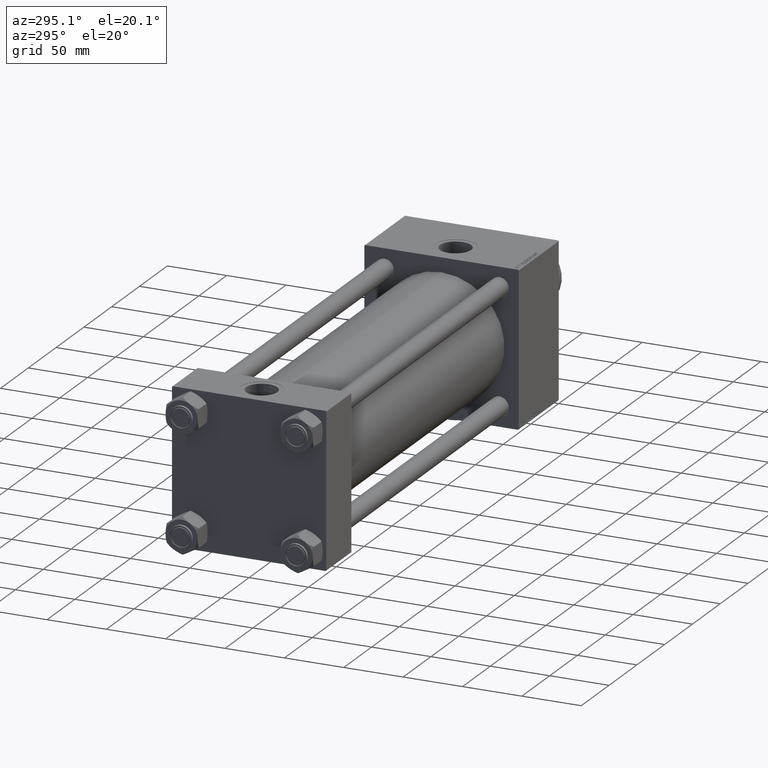
[diagram: clean part render]
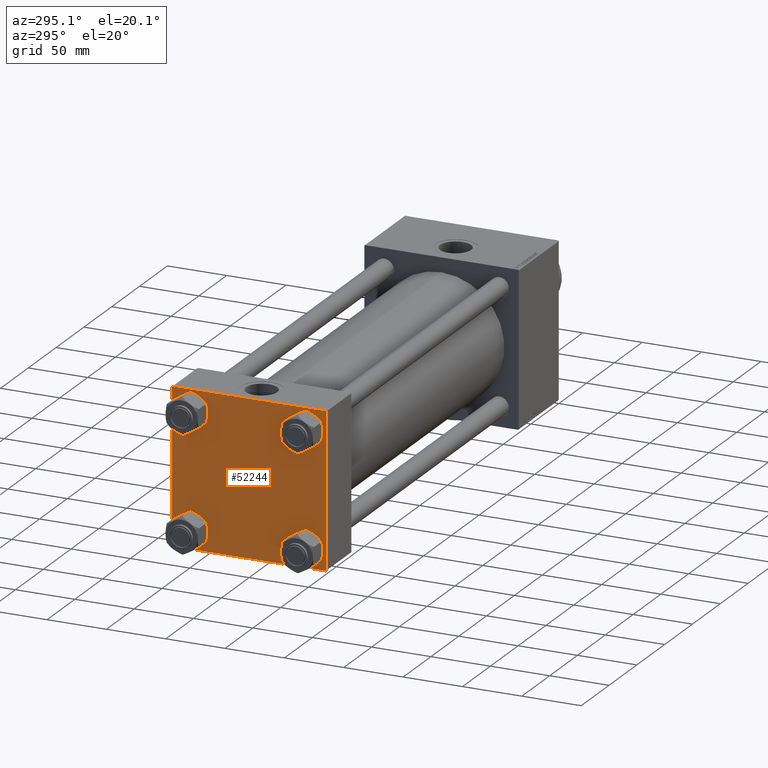
[diagram: same view with one face highlighted and labeled with its STEP entity id]
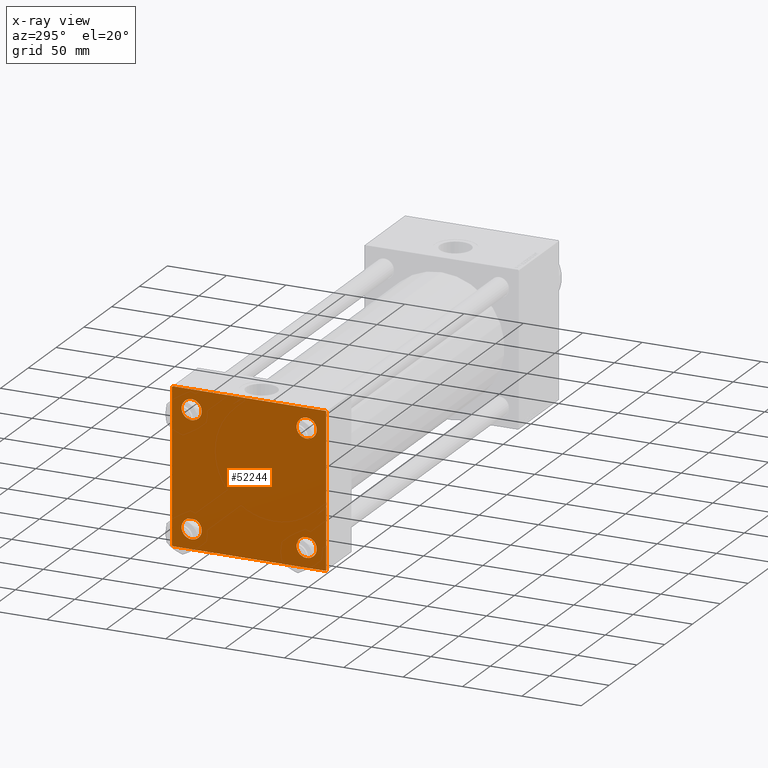
[diagram: x-ray of the same camera — body ghosted, the highlighted face saturated]
A machine part, auxiliary view. The second image highlights one B-rep face of the part: STEP entity #52244.
The next image is the same camera in x-ray: the body ghosted, the highlighted face saturated — about 0% of this face is hidden behind the body in this view.
In plain terms, the highlighted planar face has unit normal (-1, 0, 0).
Its self-contained STEP definition (entity closure, byte-faithful):
#213 = EDGE_CURVE ( 'NONE', #48922, #4113, #39203, .T. ) ;
#540 = EDGE_LOOP ( 'NONE', ( #18098, #29694, #11628, #30254, #8396, #47907, #1675, #20299 ) ) ;
#1278 = ORIENTED_EDGE ( 'NONE', *, *, #27507, .T. ) ;
#1675 = ORIENTED_EDGE ( 'NONE', *, *, #14427, .F. ) ;
#1781 = CIRCLE ( 'NONE', #9464, 8.500000000000007105 ) ;
#1783 = EDGE_CURVE ( 'NONE', #18276, #33972, #10932, .T. ) ;
#2107 = EDGE_CURVE ( 'NONE', #33059, #12242, #36708, .T. ) ;
#2655 = CARTESIAN_POINT ( 'NONE',  ( 0.000000000000000000, -48.44999999999999574, 56.95000000000003837 ) ) ;
#3102 = DIRECTION ( 'NONE',  ( 1.000000000000000000, -0.000000000000000000, 0.000000000000000000 ) ) ;
#3920 = DIRECTION ( 'NONE',  ( -0.000000000000000000, -0.7071067811865474617, -0.7071067811865474617 ) ) ;
#4066 = VECTOR ( 'NONE', #35074, 1000.000000000000114 ) ;
#4113 = VERTEX_POINT ( 'NONE', #29315 ) ;
#4424 = DIRECTION ( 'NONE',  ( 0.000000000000000000, -0.7071067811865279218, 0.7071067811865671127 ) ) ;
#4618 = DIRECTION ( 'NONE',  ( 1.000000000000000000, -0.000000000000000000, 0.000000000000000000 ) ) ;
#4962 = AXIS2_PLACEMENT_3D ( 'NONE', #28235, #19660, #44595 ) ;
#5659 = EDGE_CURVE ( 'NONE', #42571, #11744, #8976, .T. ) ;
#5748 = DIRECTION ( 'NONE',  ( 0.000000000000000000, 0.000000000000000000, 1.000000000000000000 ) ) ;
#5863 = VERTEX_POINT ( 'NONE', #43315 ) ;
#6152 = FACE_BOUND ( 'NONE', #40721, .T. ) ;
#6887 = CARTESIAN_POINT ( 'NONE',  ( 0.000000000000000000, 64.74999999999998579, 64.74999999999998579 ) ) ;
#7449 = CARTESIAN_POINT ( 'NONE',  ( 0.000000000000000000, 65.00000000000000000, -64.49999999999995737 ) ) ;
#8108 = VERTEX_POINT ( 'NONE', #7449 ) ;
#8396 = ORIENTED_EDGE ( 'NONE', *, *, #51937, .F. ) ;
#8397 = CARTESIAN_POINT ( 'NONE',  ( 0.000000000000000000, 48.45000000000000995, 39.95000000000000284 ) ) ;
#8976 = LINE ( 'NONE', #12480, #36029 ) ;
#8995 = CIRCLE ( 'NONE', #26172, 8.500000000000007105 ) ;
#9024 = ORIENTED_EDGE ( 'NONE', *, *, #2107, .T. ) ;
#9464 = AXIS2_PLACEMENT_3D ( 'NONE', #43620, #3102, #43357 ) ;
#9657 = DIRECTION ( 'NONE',  ( 0.000000000000000000, -1.000000000000000000, -1.067522139062650425E-16 ) ) ;
#10188 = FACE_BOUND ( 'NONE', #49739, .T. ) ;
#10592 = DIRECTION ( 'NONE',  ( 1.000000000000000000, -0.000000000000000000, 0.000000000000000000 ) ) ;
#10932 = LINE ( 'NONE', #19526, #22110 ) ;
#11628 = ORIENTED_EDGE ( 'NONE', *, *, #12580, .T. ) ;
#11744 = VERTEX_POINT ( 'NONE', #38070 ) ;
#11852 = CARTESIAN_POINT ( 'NONE',  ( 0.000000000000000000, 48.45000000000000995, -48.45000000000001705 ) ) ;
#11989 = CARTESIAN_POINT ( 'NONE',  ( 0.000000000000000000, 48.45000000000000995, 56.95000000000002416 ) ) ;
#12011 = VERTEX_POINT ( 'NONE', #41755 ) ;
#12242 = VERTEX_POINT ( 'NONE', #25862 ) ;
#12322 = DIRECTION ( 'NONE',  ( 0.000000000000000000, 0.000000000000000000, -1.000000000000000000 ) ) ;
#12480 = CARTESIAN_POINT ( 'NONE',  ( 0.000000000000000000, -64.75000000000176215, -64.74999999999816680 ) ) ;
#12532 = ORIENTED_EDGE ( 'NONE', *, *, #30037, .T. ) ;
#12580 = EDGE_CURVE ( 'NONE', #51797, #42571, #34909, .T. ) ;
#13441 = DIRECTION ( 'NONE',  ( 1.000000000000000000, -0.000000000000000000, 0.000000000000000000 ) ) ;
#14374 = VECTOR ( 'NONE', #35747, 1000.000000000000000 ) ;
#14427 = EDGE_CURVE ( 'NONE', #21079, #33972, #34091, .T. ) ;
#14482 = CARTESIAN_POINT ( 'NONE',  ( 0.000000000000000000, 0.000000000000000000, 0.000000000000000000 ) ) ;
#15920 = CARTESIAN_POINT ( 'NONE',  ( 0.000000000000000000, -65.00000000000000000, 64.50000000000000000 ) ) ;
#16841 = EDGE_LOOP ( 'NONE', ( #1278, #49010 ) ) ;
#17216 = DIRECTION ( 'NONE',  ( 0.000000000000000000, 0.000000000000000000, 1.000000000000000000 ) ) ;
#18098 = ORIENTED_EDGE ( 'NONE', *, *, #32565, .T. ) ;
#18276 = VERTEX_POINT ( 'NONE', #15920 ) ;
#18475 = EDGE_CURVE ( 'NONE', #41569, #37257, #42281, .T. ) ;
#18524 = CIRCLE ( 'NONE', #48539, 8.500000000000007105 ) ;
#18923 = ORIENTED_EDGE ( 'NONE', *, *, #47606, .T. ) ;
#19509 = DIRECTION ( 'NONE',  ( 1.000000000000000000, -0.000000000000000000, 0.000000000000000000 ) ) ;
#19526 = CARTESIAN_POINT ( 'NONE',  ( -0.000000000000000000, -64.74999999999819522, 64.75000000000179057 ) ) ;
#19660 = DIRECTION ( 'NONE',  ( 1.000000000000000000, -0.000000000000000000, 0.000000000000000000 ) ) ;
#20299 = ORIENTED_EDGE ( 'NONE', *, *, #51556, .T. ) ;
#20546 = CARTESIAN_POINT ( 'NONE',  ( 0.000000000000000000, -64.49999999999997158, 65.00000000000000000 ) ) ;
#20838 = CARTESIAN_POINT ( 'NONE',  ( 0.000000000000000000, 64.49999999999997158, -64.99999999999998579 ) ) ;
#21020 = DIRECTION ( 'NONE',  ( 0.000000000000000000, 0.000000000000000000, 1.000000000000000000 ) ) ;
#21079 = VERTEX_POINT ( 'NONE', #53050 ) ;
#21100 = EDGE_CURVE ( 'NONE', #8108, #51797, #36408, .T. ) ;
#21523 = CARTESIAN_POINT ( 'NONE',  ( 0.000000000000000000, -48.44999999999999574, -48.45000000000003126 ) ) ;
#22049 = DIRECTION ( 'NONE',  ( 1.000000000000000000, -0.000000000000000000, 0.000000000000000000 ) ) ;
#22110 = VECTOR ( 'NONE', #39382, 1000.000000000000000 ) ;
#22541 = FACE_BOUND ( 'NONE', #44936, .T. ) ;
#22840 = DIRECTION ( 'NONE',  ( 0.000000000000000000, -1.000000000000000000, -1.067522139062650425E-16 ) ) ;
#23680 = CARTESIAN_POINT ( 'NONE',  ( 0.000000000000000000, -65.00000000000000000, 65.00000000000000000 ) ) ;
#24586 = CIRCLE ( 'NONE', #47738, 8.500000000000007105 ) ;
#24673 = LINE ( 'NONE', #36485, #37978 ) ;
#25814 = CARTESIAN_POINT ( 'NONE',  ( 0.000000000000000000, -48.44999999999999574, 48.45000000000003126 ) ) ;
#25862 = CARTESIAN_POINT ( 'NONE',  ( 0.000000000000000000, -48.44999999999999574, -56.95000000000003837 ) ) ;
#26172 = AXIS2_PLACEMENT_3D ( 'NONE', #50859, #10592, #5748 ) ;
#27307 = LINE ( 'NONE', #6887, #4066 ) ;
#27507 = EDGE_CURVE ( 'NONE', #37257, #41569, #1781, .T. ) ;
#28235 = CARTESIAN_POINT ( 'NONE',  ( 0.000000000000000000, -48.44999999999999574, -48.45000000000003126 ) ) ;
#28266 = VECTOR ( 'NONE', #3920, 1000.000000000000114 ) ;
#28510 = DIRECTION ( 'NONE',  ( 1.000000000000000000, -0.000000000000000000, 0.000000000000000000 ) ) ;
#29315 = CARTESIAN_POINT ( 'NONE',  ( 0.000000000000000000, -48.44999999999999574, 39.95000000000001705 ) ) ;
#29694 = ORIENTED_EDGE ( 'NONE', *, *, #21100, .T. ) ;
#30037 = EDGE_CURVE ( 'NONE', #12011, #38308, #43849, .T. ) ;
#30254 = ORIENTED_EDGE ( 'NONE', *, *, #5659, .T. ) ;
#30627 = AXIS2_PLACEMENT_3D ( 'NONE', #39093, #19509, #35871 ) ;
#32565 = EDGE_CURVE ( 'NONE', #5863, #8108, #24673, .T. ) ;
#33059 = VERTEX_POINT ( 'NONE', #40131 ) ;
#33689 = ORIENTED_EDGE ( 'NONE', *, *, #49921, .T. ) ;
#33843 = DIRECTION ( 'NONE',  ( 0.000000000000000000, 0.000000000000000000, 1.000000000000000000 ) ) ;
#33854 = CARTESIAN_POINT ( 'NONE',  ( 0.000000000000000000, 48.45000000000000995, -56.95000000000002416 ) ) ;
#33972 = VERTEX_POINT ( 'NONE', #20546 ) ;
#34091 = LINE ( 'NONE', #50468, #52477 ) ;
#34128 = DIRECTION ( 'NONE',  ( 0.000000000000000000, 0.000000000000000000, 1.000000000000000000 ) ) ;
#34889 = DIRECTION ( 'NONE',  ( -1.000000000000000000, 0.000000000000000000, -0.000000000000000000 ) ) ;
#34909 = LINE ( 'NONE', #47534, #42939 ) ;
#35074 = DIRECTION ( 'NONE',  ( 0.000000000000000000, 0.7071067811865474617, -0.7071067811865474617 ) ) ;
#35747 = DIRECTION ( 'NONE',  ( 0.000000000000000000, 0.000000000000000000, -1.000000000000000000 ) ) ;
#35871 = DIRECTION ( 'NONE',  ( 0.000000000000000000, 0.000000000000000000, 1.000000000000000000 ) ) ;
#36029 = VECTOR ( 'NONE', #4424, 1000.000000000000000 ) ;
#36408 = LINE ( 'NONE', #48759, #28266 ) ;
#36485 = CARTESIAN_POINT ( 'NONE',  ( 0.000000000000000000, 65.00000000000000000, 65.00000000000001421 ) ) ;
#36708 = CIRCLE ( 'NONE', #4962, 8.500000000000007105 ) ;
#37257 = VERTEX_POINT ( 'NONE', #11989 ) ;
#37543 = ORIENTED_EDGE ( 'NONE', *, *, #41340, .T. ) ;
#37978 = VECTOR ( 'NONE', #12322, 1000.000000000000000 ) ;
#38070 = CARTESIAN_POINT ( 'NONE',  ( 0.000000000000000000, -65.00000000000000000, -64.49999999999991473 ) ) ;
#38308 = VERTEX_POINT ( 'NONE', #33854 ) ;
#38381 = DIRECTION ( 'NONE',  ( -0.000000000000000000, 0.000000000000000000, 1.000000000000000000 ) ) ;
#38649 = FACE_OUTER_BOUND ( 'NONE', #540, .T. ) ;
#39046 = CARTESIAN_POINT ( 'NONE',  ( 0.000000000000000000, -64.49999999999994316, -65.00000000000000000 ) ) ;
#39093 = CARTESIAN_POINT ( 'NONE',  ( 0.000000000000000000, -48.44999999999999574, 48.45000000000003126 ) ) ;
#39203 = CIRCLE ( 'NONE', #30627, 8.500000000000007105 ) ;
#39382 = DIRECTION ( 'NONE',  ( -0.000000000000000000, 0.7071067811865672237, 0.7071067811865279218 ) ) ;
#40131 = CARTESIAN_POINT ( 'NONE',  ( 0.000000000000000000, -48.44999999999999574, -39.95000000000001705 ) ) ;
#40721 = EDGE_LOOP ( 'NONE', ( #43358, #33689 ) ) ;
#41340 = EDGE_CURVE ( 'NONE', #38308, #12011, #8995, .T. ) ;
#41569 = VERTEX_POINT ( 'NONE', #8397 ) ;
#41755 = CARTESIAN_POINT ( 'NONE',  ( 0.000000000000000000, 48.45000000000000995, -39.95000000000000284 ) ) ;
#42281 = CIRCLE ( 'NONE', #48331, 8.500000000000007105 ) ;
#42403 = PLANE ( 'NONE',  #52150 ) ;
#42571 = VERTEX_POINT ( 'NONE', #39046 ) ;
#42939 = VECTOR ( 'NONE', #22840, 1000.000000000000000 ) ;
#42997 = AXIS2_PLACEMENT_3D ( 'NONE', #11852, #28510, #33843 ) ;
#43315 = CARTESIAN_POINT ( 'NONE',  ( 0.000000000000000000, 65.00000000000000000, 64.49999999999998579 ) ) ;
#43357 = DIRECTION ( 'NONE',  ( 0.000000000000000000, 0.000000000000000000, 1.000000000000000000 ) ) ;
#43358 = ORIENTED_EDGE ( 'NONE', *, *, #213, .T. ) ;
#43620 = CARTESIAN_POINT ( 'NONE',  ( 0.000000000000000000, 48.45000000000000995, 48.45000000000001705 ) ) ;
#43849 = CIRCLE ( 'NONE', #42997, 8.500000000000007105 ) ;
#44595 = DIRECTION ( 'NONE',  ( 0.000000000000000000, 0.000000000000000000, 1.000000000000000000 ) ) ;
#44936 = EDGE_LOOP ( 'NONE', ( #9024, #18923 ) ) ;
#47534 = CARTESIAN_POINT ( 'NONE',  ( 0.000000000000000000, 65.00000000000000000, -64.99999999999998579 ) ) ;
#47606 = EDGE_CURVE ( 'NONE', #12242, #33059, #18524, .T. ) ;
#47738 = AXIS2_PLACEMENT_3D ( 'NONE', #25814, #22049, #34128 ) ;
#47907 = ORIENTED_EDGE ( 'NONE', *, *, #1783, .T. ) ;
#48331 = AXIS2_PLACEMENT_3D ( 'NONE', #50253, #4618, #21020 ) ;
#48370 = LINE ( 'NONE', #23680, #14374 ) ;
#48539 = AXIS2_PLACEMENT_3D ( 'NONE', #21523, #13441, #17216 ) ;
#48759 = CARTESIAN_POINT ( 'NONE',  ( 0.000000000000000000, 64.74999999999997158, -64.74999999999997158 ) ) ;
#48922 = VERTEX_POINT ( 'NONE', #2655 ) ;
#49010 = ORIENTED_EDGE ( 'NONE', *, *, #18475, .T. ) ;
#49739 = EDGE_LOOP ( 'NONE', ( #12532, #37543 ) ) ;
#49921 = EDGE_CURVE ( 'NONE', #4113, #48922, #24586, .T. ) ;
#50253 = CARTESIAN_POINT ( 'NONE',  ( 0.000000000000000000, 48.45000000000000995, 48.45000000000001705 ) ) ;
#50468 = CARTESIAN_POINT ( 'NONE',  ( 0.000000000000000000, 65.00000000000000000, 65.00000000000001421 ) ) ;
#50471 = FACE_BOUND ( 'NONE', #16841, .T. ) ;
#50859 = CARTESIAN_POINT ( 'NONE',  ( 0.000000000000000000, 48.45000000000000995, -48.45000000000001705 ) ) ;
#51556 = EDGE_CURVE ( 'NONE', #21079, #5863, #27307, .T. ) ;
#51797 = VERTEX_POINT ( 'NONE', #20838 ) ;
#51937 = EDGE_CURVE ( 'NONE', #18276, #11744, #48370, .T. ) ;
#52150 = AXIS2_PLACEMENT_3D ( 'NONE', #14482, #34889, #38381 ) ;
#52244 = ADVANCED_FACE ( 'NONE', ( #6152, #22541, #10188, #50471, #38649 ), #42403, .T. ) ;
#52477 = VECTOR ( 'NONE', #9657, 1000.000000000000000 ) ;
#53050 = CARTESIAN_POINT ( 'NONE',  ( 0.000000000000000000, 64.49999999999997158, 65.00000000000001421 ) ) ;